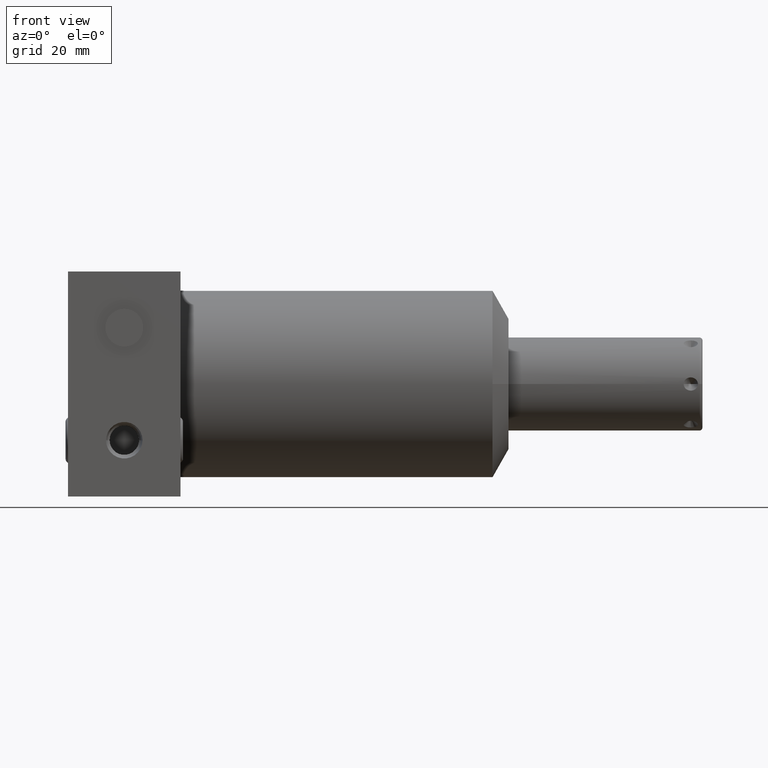
[diagram: clean part render]
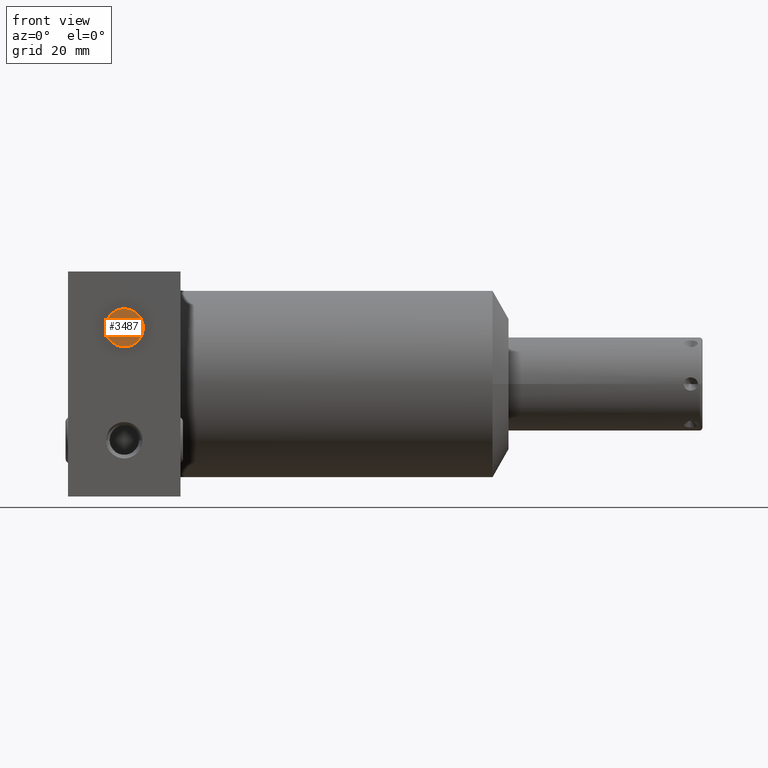
[diagram: same view with one face highlighted and labeled with its STEP entity id]
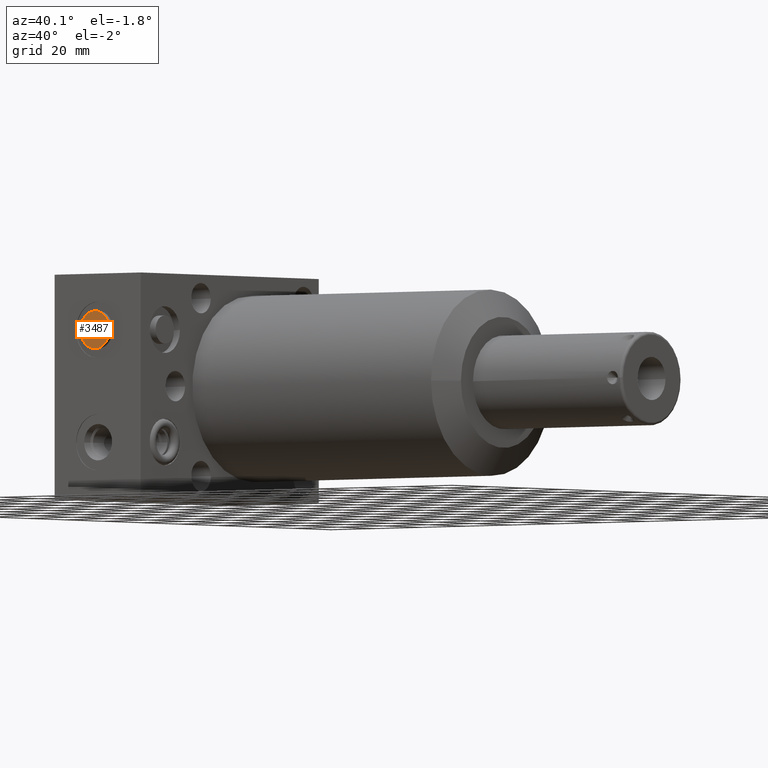
[diagram: same view with one face highlighted and labeled with its STEP entity id]
A machine part, front view. The second image highlights one B-rep face of the part: STEP entity #3487.
A second angle (auxiliary view) of the same face is appended — the face is thin or edge-on in the first view.
In plain terms, the highlighted planar face has unit normal (0, -1, 0).
Its self-contained STEP definition (entity closure, byte-faithful):
#1671=CARTESIAN_POINT('',(-7.5E-1,-2.368E0,7.5E-1));
#1672=DIRECTION('',(0.E0,-1.E0,0.E0));
#1673=DIRECTION('',(0.E0,0.E0,-1.E0));
#1674=AXIS2_PLACEMENT_3D('',#1671,#1672,#1673);
#1679=CARTESIAN_POINT('',(-7.5E-1,-2.368E0,7.5E-1));
#1680=DIRECTION('',(0.E0,-1.E0,0.E0));
#1681=DIRECTION('',(0.E0,0.E0,1.E0));
#1682=AXIS2_PLACEMENT_3D('',#1679,#1680,#1681);
#1842=CARTESIAN_POINT('',(-7.5E-1,-2.368E0,4.965E-1));
#1843=CARTESIAN_POINT('',(-7.5E-1,-2.368E0,1.0035E0));
#1844=VERTEX_POINT('',#1842);
#1845=VERTEX_POINT('',#1843);
#3478=CARTESIAN_POINT('',(-1.5E0,-2.368E0,0.E0));
#3479=DIRECTION('',(0.E0,-1.E0,0.E0));
#3480=DIRECTION('',(0.E0,0.E0,-1.E0));
#3481=AXIS2_PLACEMENT_3D('',#3478,#3479,#3480);
#3482=PLANE('',#3481);
#3483=ORIENTED_EDGE('',*,*,#3433,.F.);
#3484=ORIENTED_EDGE('',*,*,#3461,.F.);
#3485=EDGE_LOOP('',(#3483,#3484));
#3486=FACE_OUTER_BOUND('',#3485,.F.);
#1675=CIRCLE('',#1674,2.535E-1);
#1683=CIRCLE('',#1682,2.535E-1);
#3433=EDGE_CURVE('',#1844,#1845,#1675,.T.);
#3461=EDGE_CURVE('',#1845,#1844,#1683,.T.);
#3487=ADVANCED_FACE('',(#3486),#3482,.T.);